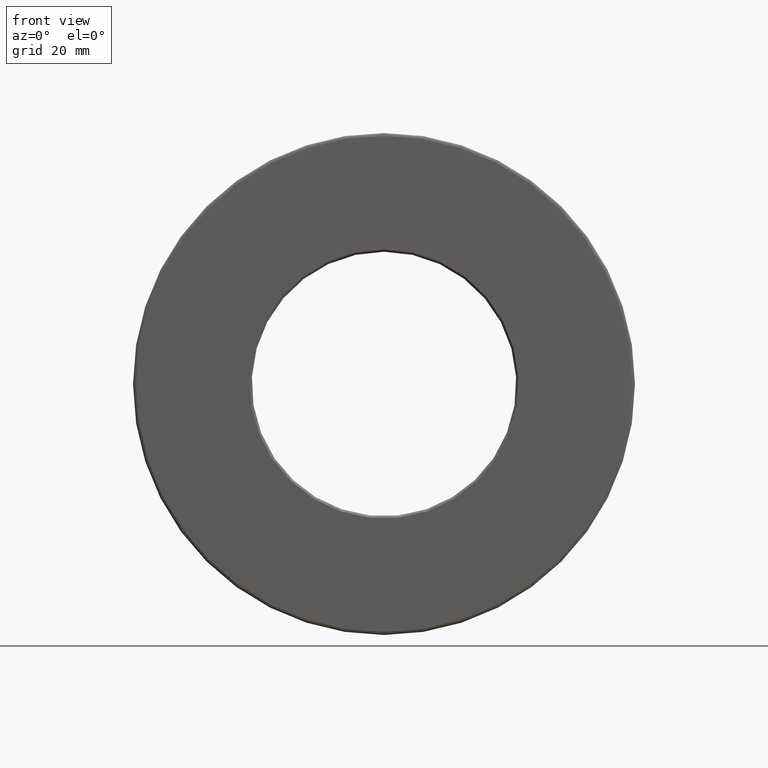
[diagram: clean part render]
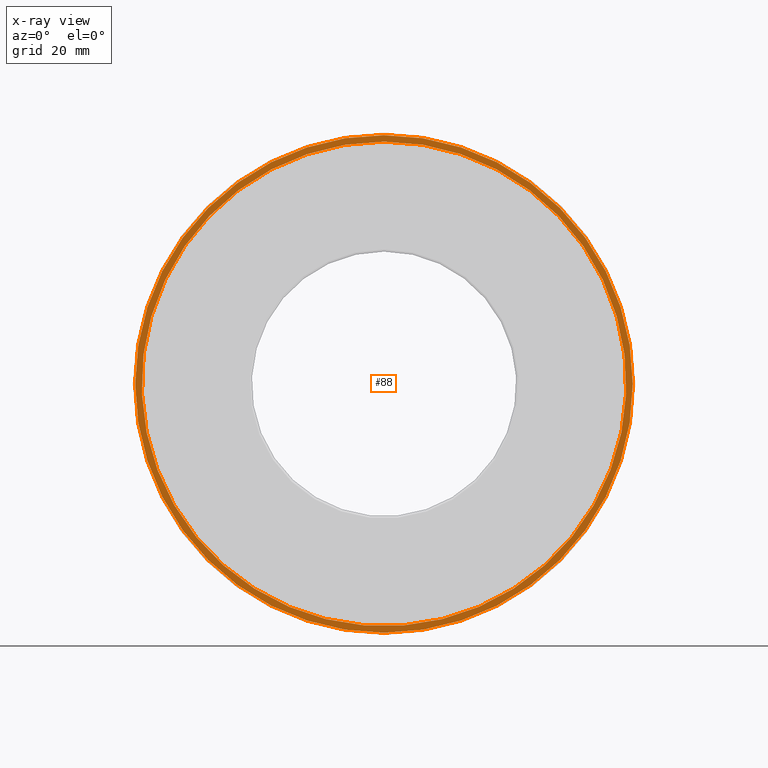
[diagram: x-ray — body ghosted, one internal face saturated and labeled with its STEP entity id]
A machine part, front view, then the same camera in x-ray: the body is ghosted and one INTERNAL B-rep face — a face not visible from any outside direction — is saturated and labeled: STEP entity #88.
In plain terms, the highlighted planar face has unit normal (-0, 1, 0).
Its self-contained STEP definition (entity closure, byte-faithful):
#22 = EDGE_CURVE ( 'NONE', #67, #67, #270, .T. ) ;
#25 = AXIS2_PLACEMENT_3D ( 'NONE', #169, #588, #262 ) ;
#67 = VERTEX_POINT ( 'NONE', #91 ) ;
#77 = DIRECTION ( 'NONE',  ( 0.0000000000000000000, 0.0000000000000000000, 1.000000000000000000 ) ) ;
#84 = EDGE_LOOP ( 'NONE', ( #214 ) ) ;
#88 = ADVANCED_FACE ( 'NONE', ( #595, #485 ), #135, .F. ) ;
#91 = CARTESIAN_POINT ( 'NONE',  ( 0.0000000000000000000, 1.589999999999999600, 2.292500000000000000 ) ) ;
#100 = AXIS2_PLACEMENT_3D ( 'NONE', #216, #305, #77 ) ;
#127 = DIRECTION ( 'NONE',  ( 0.0000000000000000000, 0.0000000000000000000, 1.000000000000000000 ) ) ;
#135 = PLANE ( 'NONE',  #520 ) ;
#167 = EDGE_LOOP ( 'NONE', ( #570 ) ) ;
#169 = CARTESIAN_POINT ( 'NONE',  ( 0.0000000000000000000, 1.589999999999999600, 0.0000000000000000000 ) ) ;
#181 = VERTEX_POINT ( 'NONE', #280 ) ;
#214 = ORIENTED_EDGE ( 'NONE', *, *, #498, .T. ) ;
#216 = CARTESIAN_POINT ( 'NONE',  ( 0.0000000000000000000, 1.589999999999999600, 0.0000000000000000000 ) ) ;
#262 = DIRECTION ( 'NONE',  ( 0.0000000000000000000, 0.0000000000000000000, 1.000000000000000000 ) ) ;
#270 = CIRCLE ( 'NONE', #100, 2.292500000000000000 ) ;
#280 = CARTESIAN_POINT ( 'NONE',  ( 0.0000000000000000000, 1.589999999999999600, 2.232499999999999900 ) ) ;
#305 = DIRECTION ( 'NONE',  ( -0.0000000000000000000, 1.000000000000000000, -0.0000000000000000000 ) ) ;
#356 = DIRECTION ( 'NONE',  ( -0.0000000000000000000, 1.000000000000000000, 0.0000000000000000000 ) ) ;
#485 = FACE_BOUND ( 'NONE', #84, .T. ) ;
#498 = EDGE_CURVE ( 'NONE', #181, #181, #510, .T. ) ;
#510 = CIRCLE ( 'NONE', #25, 2.232499999999999900 ) ;
#520 = AXIS2_PLACEMENT_3D ( 'NONE', #536, #356, #127 ) ;
#536 = CARTESIAN_POINT ( 'NONE',  ( 0.0000000000000000000, 1.589999999999999600, 0.0000000000000000000 ) ) ;
#570 = ORIENTED_EDGE ( 'NONE', *, *, #22, .F. ) ;
#588 = DIRECTION ( 'NONE',  ( -0.0000000000000000000, 1.000000000000000000, -0.0000000000000000000 ) ) ;
#595 = FACE_OUTER_BOUND ( 'NONE', #167, .T. ) ;